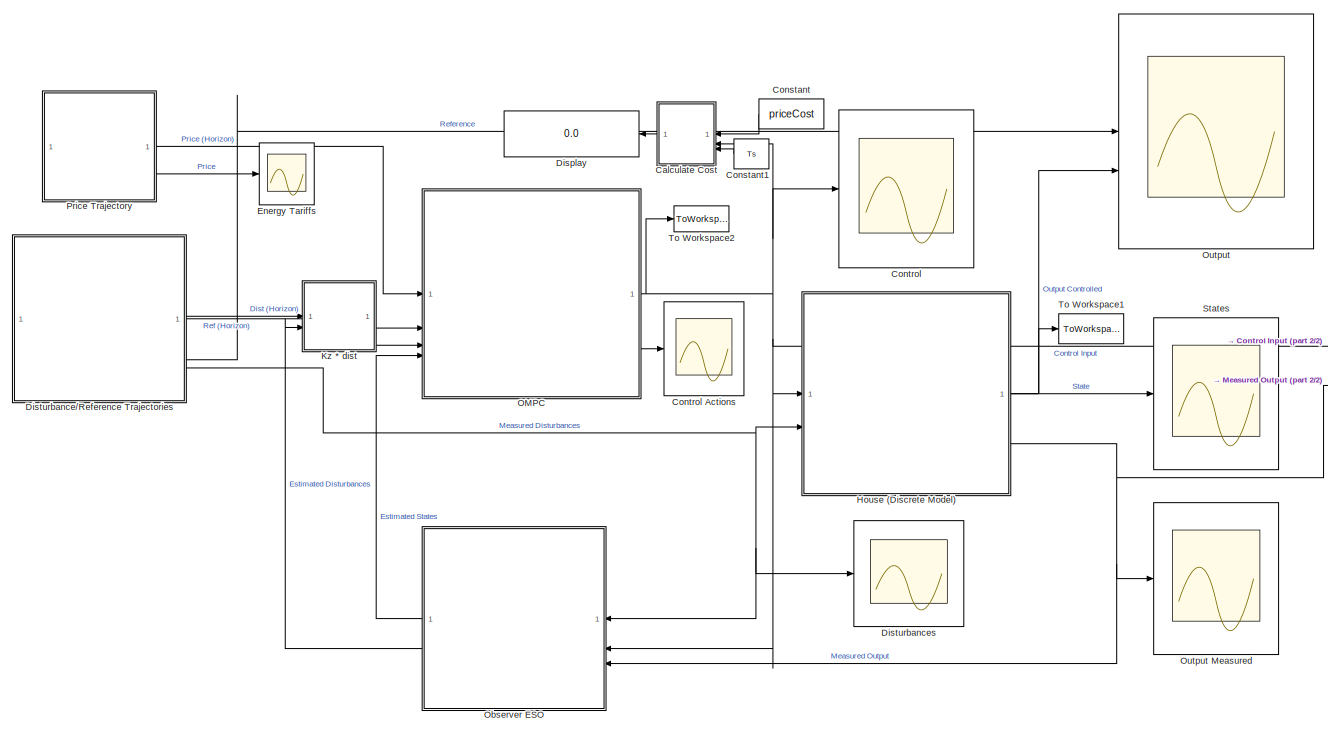
[diagram: root canvas - part 1/2, most of the canvas]
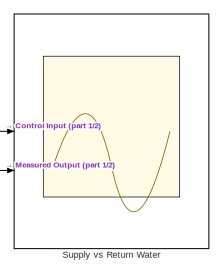
[diagram: root canvas - part 2/2, middle right region]
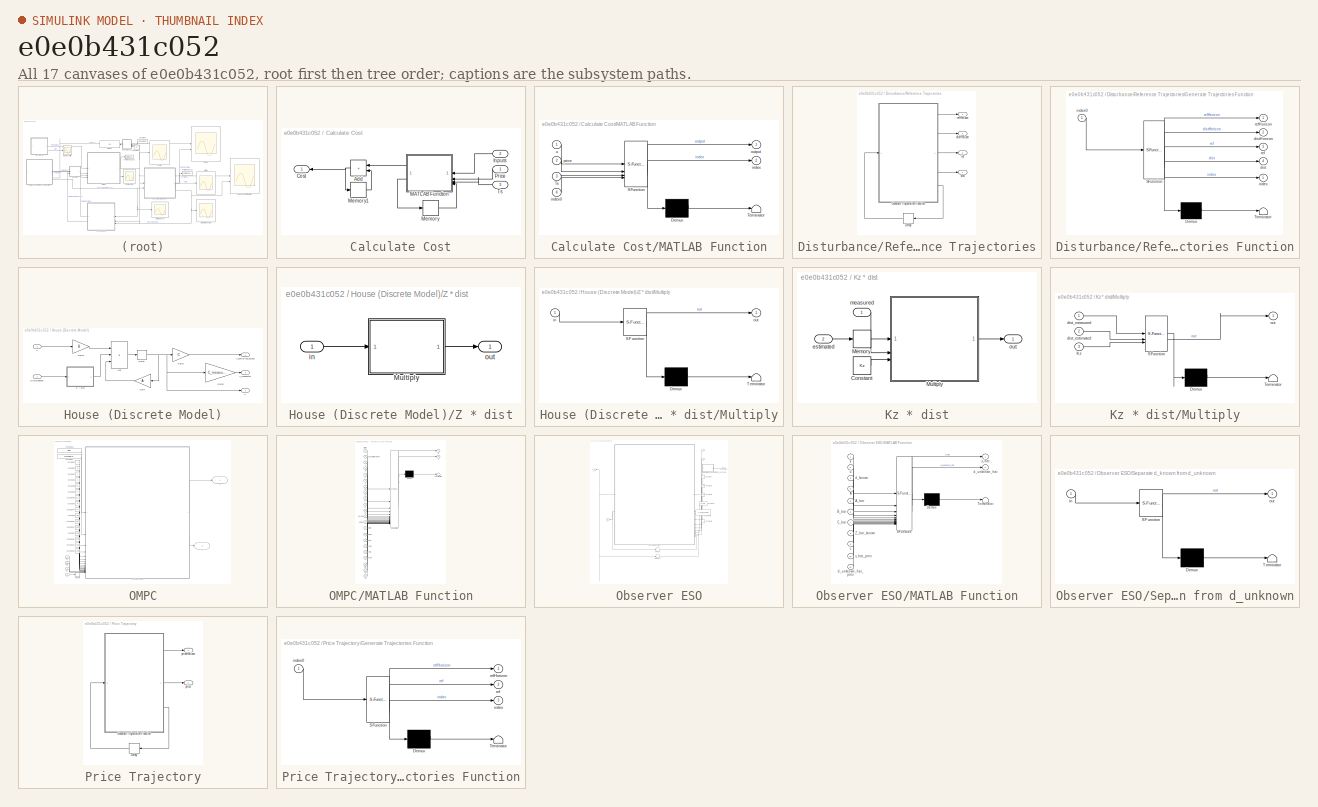
[diagram: thumbnail index - all 17 canvases of the model, root first then tree order]
MODEL slx_e0e0b431c052
KIND model
CONFIG AbsTol = auto
CONFIG EnableMultiTasking = off
CONFIG FixedStep = Ts
CONFIG MaxStep = auto
CONFIG MinStep = auto
CONFIG RelTol = 1e-3
CONFIG SampleTimeConstraint = Unconstrained
CONFIG SolverName = ode8
CONFIG StartTime = 0.0
CONFIG StopTime = time
BLOCK [SubSystem] Calculate Cost
BLOCK [Sum] Calculate Cost/Add
  IconShape = rectangular
  NameLocation = top
BLOCK [Outport] Calculate Cost/Cost
BLOCK [Inport] Calculate Cost/Inputs
  Port = 2
BLOCK [SubSystem] Calculate Cost/MATLAB Function
  ErrorFcn = Stateflow.Translate.translate
  LibrarySourceBlock = simulink/User-Defined\nFunctions/MATLAB Function
  PermitHierarchicalResolution = ExplicitOnly
  SFBlockType = MATLAB Function
  TreatAsAtomicUnit = on
BLOCK [Demux] Calculate Cost/MATLAB Function/ Demux 
  Outputs = 1
BLOCK [S-Function] Calculate Cost/MATLAB Function/ SFunction 
  EnableBusSupport = on
  FunctionName = sf_sfun
  PortCounts = [4 3]
  SFcnIsStateOwnerBlock = off
  SFunctionDeploymentMode = off
  Tag = Stateflow S-Function 3
BLOCK [Terminator] Calculate Cost/MATLAB Function/ Terminator 
BLOCK [Inport] Calculate Cost/MATLAB Function/Ts
  Port = 3
BLOCK [Outport] Calculate Cost/MATLAB Function/index
  Port = 2
BLOCK [Inport] Calculate Cost/MATLAB Function/index0
  Port = 4
BLOCK [Outport] Calculate Cost/MATLAB Function/output
BLOCK [Inport] Calculate Cost/MATLAB Function/price
  Port = 2
BLOCK [Inport] Calculate Cost/MATLAB Function/u
BLOCK [Memory] Calculate Cost/Memory
  InitialCondition = 1
BLOCK [Memory] Calculate Cost/Memory1
  InitialCondition = [0 0]
BLOCK [Inport] Calculate Cost/Price
BLOCK [Inport] Calculate Cost/Ts
  Port = 3
BLOCK [Constant] Constant
  NameLocation = top
  Value = priceCost
BLOCK [Constant] Constant1
  NameLocation = top
  Value = Ts
BLOCK [Scope] Control
  Floating = off
  NumInputPorts = 1
  ScopeSpecificationString = Simulink.scopes.TimeScopeBlockCfg('CurrentConfiguration', extmgr.ConfigurationSet(extmgr.Configuration('Core','General UI',true,'FigureColor',[1 1 1]),extmgr.Configuration('Core','Source UI',true),extmgr.Configuration('Sources','WiredSimulink',true,'DataLoggingVariableName','ScopeData2'),extmgr.Configuration('Visuals','Time Domain',true,'SerializedDisplays',{struct('MinYLimReal','5.9347','MaxYLimR...<+1852ch>
BLOCK [Scope] Control Actions
  Floating = off
  NumInputPorts = 1
  ScopeSpecificationString = Simulink.scopes.TimeScopeBlockCfg('CurrentConfiguration', extmgr.ConfigurationSet(extmgr.Configuration('Core','General UI',true,'FigureColor',[1 1 1]),extmgr.Configuration('Core','Source UI',true),extmgr.Configuration('Sources','WiredSimulink',true,'DataLoggingVariableName','ScopeData1'),extmgr.Configuration('Visuals','Time Domain',true,'SerializedDisplays',{struct('MinYLimReal','-367.49454','MaxY...<+1776ch>
BLOCK [Display] Display
  Decimation = 1
  NameLocation = top
BLOCK [SubSystem] Disturbance//Reference Trajectories
BLOCK [Delay] Disturbance//Reference Trajectories/Delay
  DelayLength = 1
  InitialCondition = 1
  InputPortMap = u0
  NameLocation = top
BLOCK [SubSystem] Disturbance//Reference Trajectories/Generate Trajectories Function
  ErrorFcn = Stateflow.Translate.translate
  LibrarySourceBlock = simulink/User-Defined\nFunctions/MATLAB Function
  PermitHierarchicalResolution = ExplicitOnly
  SFBlockType = MATLAB Function
  TreatAsAtomicUnit = on
BLOCK [Demux] Disturbance//Reference Trajectories/Generate Trajectories Function/ Demux 
  Outputs = 1
BLOCK [S-Function] Disturbance//Reference Trajectories/Generate Trajectories Function/ SFunction 
  EnableBusSupport = on
  FunctionName = sf_sfun
  Parameters = Ts,distValues,na,refValues,time
  PortCounts = [1 6]
  SFcnIsStateOwnerBlock = off
  SFunctionDeploymentMode = off
  Tag = Stateflow S-Function 10
BLOCK [Terminator] Disturbance//Reference Trajectories/Generate Trajectories Function/ Terminator 
BLOCK [Outport] Disturbance//Reference Trajectories/Generate Trajectories Function/dist
  Port = 4
BLOCK [Outport] Disturbance//Reference Trajectories/Generate Trajectories Function/distHorizon
  Port = 2
BLOCK [Outport] Disturbance//Reference Trajectories/Generate Trajectories Function/index
  Port = 5
BLOCK [Inport] Disturbance//Reference Trajectories/Generate Trajectories Function/index0
BLOCK [Outport] Disturbance//Reference Trajectories/Generate Trajectories Function/ref
  Port = 3
BLOCK [Outport] Disturbance//Reference Trajectories/Generate Trajectories Function/refHorizon
BLOCK [Outport] Disturbance//Reference Trajectories/dist
  Port = 4
BLOCK [Outport] Disturbance//Reference Trajectories/distHorizon
  Port = 2
BLOCK [Outport] Disturbance//Reference Trajectories/ref
  Port = 3
BLOCK [Outport] Disturbance//Reference Trajectories/refHorizon
BLOCK [Scope] Disturbances
  Floating = off
  NumInputPorts = 1
  ScopeSpecificationString = Simulink.scopes.TimeScopeBlockCfg('CurrentConfiguration', extmgr.ConfigurationSet(extmgr.Configuration('Core','General UI',true,'FigureColor',[1 1 1]),extmgr.Configuration('Core','Source UI',true),extmgr.Configuration('Sources','WiredSimulink',true,'DataLoggingVariableName','ScopeData6'),extmgr.Configuration('Visuals','Time Domain',true,'SerializedDisplays',{struct('MinYLimReal','-10.15502','MaxYL...<+2436ch>
BLOCK [Scope] Energy Tariffs
  Floating = off
  NumInputPorts = 1
  ScopeSpecificationString = Simulink.scopes.TimeScopeBlockCfg('CurrentConfiguration', extmgr.ConfigurationSet(extmgr.Configuration('Core','General UI',true,'FigureColor',[1 1 1]),extmgr.Configuration('Core','Source UI',true),extmgr.Configuration('Sources','WiredSimulink',true,'DataLoggingVariableName','ScopeData1'),extmgr.Configuration('Visuals','Time Domain',true,'SerializedDisplays',{struct('MinYLimReal','0.92527','MaxYLim...<+1587ch>
BLOCK [SubSystem] House (Discrete Model)
BLOCK [Sum] House (Discrete Model)/Add
  IconShape = rectangular
  Inputs = +++
BLOCK [Delay] House (Discrete Model)/Delay
  DelayLength = 1
  InitialCondition = x0
  InputPortMap = u0
BLOCK [Inport] House (Discrete Model)/Disturbances
  Port = 2
BLOCK [Gain] House (Discrete Model)/Gain
  Gain = A
  Multiplication = Matrix(K*u) (u vector)
  NameLocation = top
BLOCK [Gain] House (Discrete Model)/Gain1
  Gain = C
  Multiplication = Matrix(K*u) (u vector)
BLOCK [Gain] House (Discrete Model)/Gain2
  Gain = B
  Multiplication = Matrix(K*u) (u vector)
BLOCK [Gain] House (Discrete Model)/Gain5
  Gain = C_measured
  Multiplication = Matrix(K*u) (u vector)
BLOCK [SubSystem] House (Discrete Model)/Z * dist
BLOCK [SubSystem] House (Discrete Model)/Z * dist/Multiply
  ErrorFcn = Stateflow.Translate.translate
  LibrarySourceBlock = simulink/User-Defined\nFunctions/MATLAB Function
  PermitHierarchicalResolution = ExplicitOnly
  SFBlockType = MATLAB Function
  TreatAsAtomicUnit = on
BLOCK [Demux] House (Discrete Model)/Z * dist/Multiply/ Demux 
  Outputs = 1
BLOCK [S-Function] House (Discrete Model)/Z * dist/Multiply/ SFunction 
  EnableBusSupport = on
  FunctionName = sf_sfun
  Parameters = Z
  PortCounts = [1 2]
  SFcnIsStateOwnerBlock = off
  SFunctionDeploymentMode = off
  Tag = Stateflow S-Function 1
BLOCK [Terminator] House (Discrete Model)/Z * dist/Multiply/ Terminator 
BLOCK [Inport] House (Discrete Model)/Z * dist/Multiply/in
BLOCK [Outport] House (Discrete Model)/Z * dist/Multiply/out
BLOCK [Inport] House (Discrete Model)/Z * dist/in
BLOCK [Outport] House (Discrete Model)/Z * dist/out
BLOCK [Inport] House (Discrete Model)/u
BLOCK [Outport] House (Discrete Model)/x
  Port = 2
BLOCK [Outport] House (Discrete Model)/y_controlled_output
BLOCK [Outport] House (Discrete Model)/y_measured
  Port = 3
BLOCK [SubSystem] Kz * dist
BLOCK [Constant] Kz * dist/Constant
  Value = Kz
BLOCK [Memory] Kz * dist/Memory
  InitialCondition = zeros(size(Z,2)-6,1)
BLOCK [SubSystem] Kz * dist/Multiply
  ErrorFcn = Stateflow.Translate.translate
  LibrarySourceBlock = simulink/User-Defined\nFunctions/MATLAB Function
  PermitHierarchicalResolution = ExplicitOnly
  SFBlockType = MATLAB Function
  TreatAsAtomicUnit = on
BLOCK [Demux] Kz * dist/Multiply/ Demux 
  Outputs = 1
BLOCK [S-Function] Kz * dist/Multiply/ SFunction 
  EnableBusSupport = on
  FunctionName = sf_sfun
  PortCounts = [3 2]
  SFcnIsStateOwnerBlock = off
  SFunctionDeploymentMode = off
  Tag = Stateflow S-Function 12
BLOCK [Terminator] Kz * dist/Multiply/ Terminator 
BLOCK [Inport] Kz * dist/Multiply/Kz
  Port = 3
BLOCK [Inport] Kz * dist/Multiply/dist_estimated
  Port = 2
BLOCK [Inport] Kz * dist/Multiply/dist_measured
BLOCK [Outport] Kz * dist/Multiply/out
BLOCK [Inport] Kz * dist/estimated
  Port = 2
BLOCK [Inport] Kz * dist/measured
BLOCK [Outport] Kz * dist/out
BLOCK [SubSystem] OMPC
BLOCK [Constant] OMPC/Constant1
  Value = xmax
  VectorParams1D = off
BLOCK [Constant] OMPC/Constant10
  Value = umax
  VectorParams1D = off
BLOCK [Constant] OMPC/Constant11
  Value = umin
  VectorParams1D = off
BLOCK [Constant] OMPC/Constant12
  Value = ymax
BLOCK [Constant] OMPC/Constant13
  Value = ymin
BLOCK [Constant] OMPC/Constant14
  Value = nc
BLOCK [Constant] OMPC/Constant15
  Value = xmin
BLOCK [Constant] OMPC/Constant16
  Value = Scr
  VectorParams1D = off
BLOCK [Constant] OMPC/Constant17
  Value = zoneWaterIndex
BLOCK [Constant] OMPC/Constant18
  Value = Qflow
BLOCK [Constant] OMPC/Constant2
  Value = A
BLOCK [Constant] OMPC/Constant3
  Value = B
  VectorParams1D = off
BLOCK [Constant] OMPC/Constant4
  Value = C
  VectorParams1D = off
BLOCK [Constant] OMPC/Constant5
  Value = npred
BLOCK [Constant] OMPC/Constant6
  Value = K
  VectorParams1D = off
BLOCK [Constant] OMPC/Constant7
  Value = w
BLOCK [Constant] OMPC/Constant8
  Value = Sxc
  VectorParams1D = off
BLOCK [Constant] OMPC/Constant9
  Value = Sc
  VectorParams1D = off
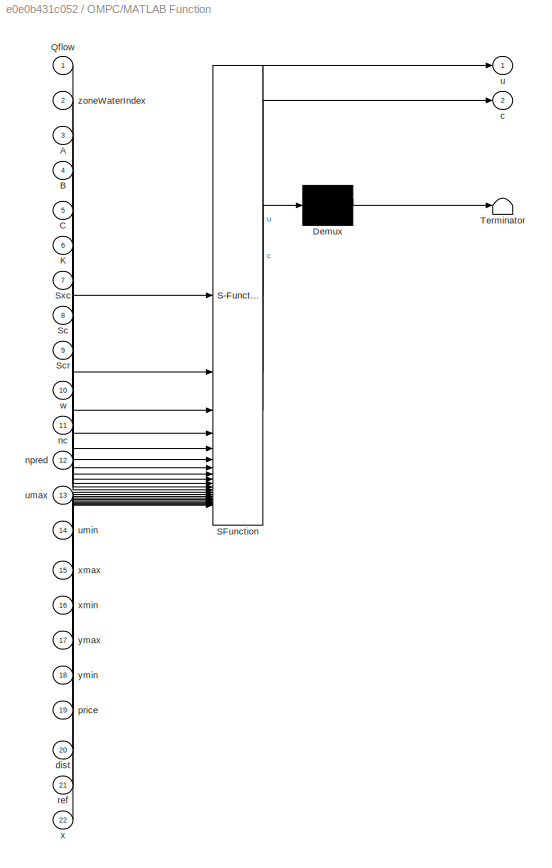
BLOCK [SubSystem] OMPC/MATLAB Function
  ErrorFcn = Stateflow.Translate.translate
  LibrarySourceBlock = simulink/User-Defined\nFunctions/MATLAB Function
  PermitHierarchicalResolution = ExplicitOnly
  SFBlockType = MATLAB Function
  TreatAsAtomicUnit = on
BLOCK [Demux] OMPC/MATLAB Function/ Demux 
  Outputs = 1
BLOCK [S-Function] OMPC/MATLAB Function/ SFunction 
  EnableBusSupport = on
  FunctionName = sf_sfun
  PortCounts = [22 3]
  SFcnIsStateOwnerBlock = off
  SFunctionDeploymentMode = off
  Tag = Stateflow S-Function 14
BLOCK [Terminator] OMPC/MATLAB Function/ Terminator 
BLOCK [Inport] OMPC/MATLAB Function/A
  Port = 3
BLOCK [Inport] OMPC/MATLAB Function/B
  Port = 4
BLOCK [Inport] OMPC/MATLAB Function/C
  Port = 5
BLOCK [Inport] OMPC/MATLAB Function/K
  Port = 6
BLOCK [Inport] OMPC/MATLAB Function/Qflow
BLOCK [Inport] OMPC/MATLAB Function/Sc
  Port = 8
BLOCK [Inport] OMPC/MATLAB Function/Scr
  Port = 9
BLOCK [Inport] OMPC/MATLAB Function/Sxc
  Port = 7
BLOCK [Outport] OMPC/MATLAB Function/c
  Port = 2
BLOCK [Inport] OMPC/MATLAB Function/dist
  Port = 20
BLOCK [Inport] OMPC/MATLAB Function/nc
  Port = 11
BLOCK [Inport] OMPC/MATLAB Function/npred
  Port = 12
BLOCK [Inport] OMPC/MATLAB Function/price
  Port = 19
BLOCK [Inport] OMPC/MATLAB Function/ref
  Port = 21
BLOCK [Outport] OMPC/MATLAB Function/u
BLOCK [Inport] OMPC/MATLAB Function/umax
  Port = 13
BLOCK [Inport] OMPC/MATLAB Function/umin
  Port = 14
BLOCK [Inport] OMPC/MATLAB Function/w
  Port = 10
BLOCK [Inport] OMPC/MATLAB Function/x
  Port = 22
BLOCK [Inport] OMPC/MATLAB Function/xmax
  Port = 15
BLOCK [Inport] OMPC/MATLAB Function/xmin
  Port = 16
BLOCK [Inport] OMPC/MATLAB Function/ymax
  Port = 17
BLOCK [Inport] OMPC/MATLAB Function/ymin
  Port = 18
BLOCK [Inport] OMPC/MATLAB Function/zoneWaterIndex
  Port = 2
BLOCK [Memory] OMPC/Memory
  InitialCondition = x0
BLOCK [Outport] OMPC/c
  Port = 2
BLOCK [Inport] OMPC/dist
  Port = 3
BLOCK [Inport] OMPC/price
BLOCK [Inport] OMPC/ref
  Port = 2
BLOCK [Outport] OMPC/u
BLOCK [Inport] OMPC/x
  Port = 4
BLOCK [SubSystem] Observer ESO
BLOCK [Constant] Observer ESO/Constant
  NameLocation = top
  Value = A
BLOCK [Constant] Observer ESO/Constant1
  NameLocation = top
  Value = A_bar
BLOCK [Constant] Observer ESO/Constant2
  NameLocation = top
  Value = B_bar
BLOCK [Constant] Observer ESO/Constant3
  NameLocation = top
  Value = C_bar
BLOCK [Constant] Observer ESO/Constant4
  NameLocation = top
  Value = Z_bar_known
BLOCK [Constant] Observer ESO/Constant5
  NameLocation = top
  Value = L
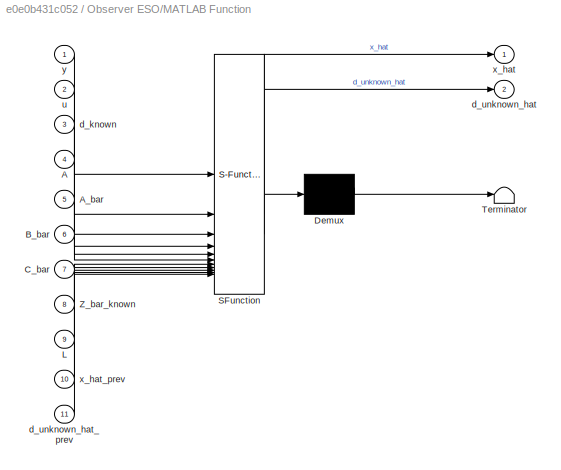
BLOCK [SubSystem] Observer ESO/MATLAB Function
  ErrorFcn = Stateflow.Translate.translate
  LibrarySourceBlock = simulink/User-Defined\nFunctions/MATLAB Function
  NameLocation = top
  PermitHierarchicalResolution = ExplicitOnly
  SFBlockType = MATLAB Function
  TreatAsAtomicUnit = on
BLOCK [Demux] Observer ESO/MATLAB Function/ Demux 
  Outputs = 1
BLOCK [S-Function] Observer ESO/MATLAB Function/ SFunction 
  EnableBusSupport = on
  FunctionName = sf_sfun
  PortCounts = [11 3]
  SFcnIsStateOwnerBlock = off
  SFunctionDeploymentMode = off
  Tag = Stateflow S-Function 15
BLOCK [Terminator] Observer ESO/MATLAB Function/ Terminator 
BLOCK [Inport] Observer ESO/MATLAB Function/A
  Port = 4
BLOCK [Inport] Observer ESO/MATLAB Function/A_bar
  Port = 5
BLOCK [Inport] Observer ESO/MATLAB Function/B_bar
  Port = 6
BLOCK [Inport] Observer ESO/MATLAB Function/C_bar
  Port = 7
BLOCK [Inport] Observer ESO/MATLAB Function/L
  Port = 9
BLOCK [Inport] Observer ESO/MATLAB Function/Z_bar_known
  Port = 8
BLOCK [Inport] Observer ESO/MATLAB Function/d_known
  Port = 3
BLOCK [Outport] Observer ESO/MATLAB Function/d_unknown_hat
  Port = 2
BLOCK [Inport] Observer ESO/MATLAB Function/d_unknown_hat_prev
  Port = 11
BLOCK [Inport] Observer ESO/MATLAB Function/u
  Port = 2
BLOCK [Outport] Observer ESO/MATLAB Function/x_hat
BLOCK [Inport] Observer ESO/MATLAB Function/x_hat_prev
  Port = 10
BLOCK [Inport] Observer ESO/MATLAB Function/y
BLOCK [Memory] Observer ESO/Memory
  InitialCondition = zeros(size(Z,2) - size(Z_bar_known,2),1)
BLOCK [Memory] Observer ESO/Memory1
  InitialCondition = x0
BLOCK [SubSystem] Observer ESO/Separate d_known from d_unknown
  ErrorFcn = Stateflow.Translate.translate
  LibrarySourceBlock = simulink/User-Defined\nFunctions/MATLAB Function
  NameLocation = top
  PermitHierarchicalResolution = ExplicitOnly
  SFBlockType = MATLAB Function
  TreatAsAtomicUnit = on
BLOCK [Demux] Observer ESO/Separate d_known from d_unknown/ Demux 
  Outputs = 1
BLOCK [S-Function] Observer ESO/Separate d_known from d_unknown/ SFunction 
  EnableBusSupport = on
  FunctionName = sf_sfun
  PortCounts = [1 2]
  SFcnIsStateOwnerBlock = off
  SFunctionDeploymentMode = off
  Tag = Stateflow S-Function 17
BLOCK [Terminator] Observer ESO/Separate d_known from d_unknown/ Terminator 
BLOCK [Inport] Observer ESO/Separate d_known from d_unknown/in
BLOCK [Outport] Observer ESO/Separate d_known from d_unknown/out
BLOCK [Outport] Observer ESO/d
  NameLocation = top
  Port = 2
BLOCK [Inport] Observer ESO/d_known
  NameLocation = top
BLOCK [Inport] Observer ESO/u
  NameLocation = top
  Port = 2
BLOCK [Outport] Observer ESO/x
  NameLocation = top
BLOCK [Inport] Observer ESO/y
  NameLocation = top
  Port = 3
BLOCK [Scope] Output
  Floating = off
  NumInputPorts = 2
  ScopeSpecificationString = Simulink.scopes.TimeScopeBlockCfg('CurrentConfiguration', extmgr.ConfigurationSet(extmgr.Configuration('Core','General UI',true,'FigureColor',[1 1 1]),extmgr.Configuration('Core','Source UI',true),extmgr.Configuration('Sources','WiredSimulink',true,'DataLoggingVariableName','ScopeData5'),extmgr.Configuration('Visuals','Time Domain',true,'PlotType','Line','SerializedDisplays',{struct('MinYLimReal',...<+2176ch>
BLOCK [Scope] Output Measured
  Floating = off
  NumInputPorts = 1
  ScopeSpecificationString = Simulink.scopes.TimeScopeBlockCfg('CurrentConfiguration', extmgr.ConfigurationSet(extmgr.Configuration('Core','General UI',true,'FigureColor',[1 1 1]),extmgr.Configuration('Core','Source UI',true),extmgr.Configuration('Sources','WiredSimulink',true,'DataLoggingVariableName','ScopeData4'),extmgr.Configuration('Visuals','Time Domain',true,'SerializedDisplays',{struct('MinYLimReal','16.1351','MaxYLim...<+4156ch>
BLOCK [SubSystem] Price Trajectory
BLOCK [Delay] Price Trajectory/Delay
  DelayLength = 1
  InitialCondition = 1
  InputPortMap = u0
  NameLocation = top
BLOCK [SubSystem] Price Trajectory/Generate Trajectories Function
  ErrorFcn = Stateflow.Translate.translate
  LibrarySourceBlock = simulink/User-Defined\nFunctions/MATLAB Function
  PermitHierarchicalResolution = ExplicitOnly
  SFBlockType = MATLAB Function
  TreatAsAtomicUnit = on
BLOCK [Demux] Price Trajectory/Generate Trajectories Function/ Demux 
  Outputs = 1
BLOCK [S-Function] Price Trajectory/Generate Trajectories Function/ SFunction 
  EnableBusSupport = on
  FunctionName = sf_sfun
  Parameters = N,Ts,refValues,time
  PortCounts = [1 4]
  SFcnIsStateOwnerBlock = off
  SFunctionDeploymentMode = off
  Tag = Stateflow S-Function 2
BLOCK [Terminator] Price Trajectory/Generate Trajectories Function/ Terminator 
BLOCK [Outport] Price Trajectory/Generate Trajectories Function/index
  Port = 3
BLOCK [Inport] Price Trajectory/Generate Trajectories Function/index0
BLOCK [Outport] Price Trajectory/Generate Trajectories Function/ref
  Port = 2
BLOCK [Outport] Price Trajectory/Generate Trajectories Function/refHorizon
BLOCK [Outport] Price Trajectory/price
  Port = 2
BLOCK [Outport] Price Trajectory/priceHorizon
BLOCK [Scope] States
  Floating = off
  NumInputPorts = 1
  ScopeSpecificationString = Simulink.scopes.TimeScopeBlockCfg('CurrentConfiguration', extmgr.ConfigurationSet(extmgr.Configuration('Core','General UI',true,'FigureColor',[1 1 1]),extmgr.Configuration('Core','Source UI',true),extmgr.Configuration('Sources','WiredSimulink',true,'DataLoggingVariableName','ScopeData7'),extmgr.Configuration('Visuals','Time Domain',true,'SerializedDisplays',{struct('MinYLimReal','-11.68999','MaxYL...<+4428ch>
BLOCK [Scope] Supply vs Return Water
  Floating = off
  NumInputPorts = 2
  ScopeSpecificationString = Simulink.scopes.TimeScopeBlockCfg('CurrentConfiguration', extmgr.ConfigurationSet(extmgr.Configuration('Core','General UI',true,'FigureColor',[1 1 1]),extmgr.Configuration('Core','Source UI',true),extmgr.Configuration('Sources','WiredSimulink',true,'DataLoggingVariableName','ScopeData1'),extmgr.Configuration('Visuals','Time Domain',true,'PlotType','Line','SerializedDisplays',{struct('MinYLimReal',...<+2528ch>
BLOCK [ToWorkspace] To Workspace1
  FixptAsFi = on
  MaxDataPoints = inf
  SampleTime = -1
  Save2DSignal = 2-D array (concatenate along first dimension)
  VariableName = output
BLOCK [ToWorkspace] To Workspace2
  FixptAsFi = on
  MaxDataPoints = inf
  SampleTime = -1
  Save2DSignal = 2-D array (concatenate along first dimension)
  VariableName = ctrl
NET Calculate Cost/Add:1 -> Calculate Cost/Cost:1, Calculate Cost/Memory1:1
LINE Calculate Cost/Inputs:1 -> Calculate Cost/MATLAB Function:1
LINE Calculate Cost/MATLAB Function:1 -> Calculate Cost/Add:1
LINE Calculate Cost/MATLAB Function:2 -> Calculate Cost/Memory:1
LINE Calculate Cost/Memory1:1 -> Calculate Cost/Add:2
LINE Calculate Cost/Memory:1 -> Calculate Cost/MATLAB Function:4
LINE Calculate Cost/Price:1 -> Calculate Cost/MATLAB Function:2
LINE Calculate Cost/Ts:1 -> Calculate Cost/MATLAB Function:3
LINE Calculate Cost:1 -> Display:1
LINE Constant1:1 -> Calculate Cost:3
LINE Constant:1 -> Calculate Cost:1
LINE Disturbance//Reference Trajectories/Delay:1 -> Disturbance//Reference Trajectories/Generate Trajectories Function:1
LINE Disturbance//Reference Trajectories/Generate Trajectories Function:1 -> Disturbance//Reference Trajectories/refHorizon:1
LINE Disturbance//Reference Trajectories/Generate Trajectories Function:2 -> Disturbance//Reference Trajectories/distHorizon:1
LINE Disturbance//Reference Trajectories/Generate Trajectories Function:3 -> Disturbance//Reference Trajectories/ref:1
LINE Disturbance//Reference Trajectories/Generate Trajectories Function:4 -> Disturbance//Reference Trajectories/dist:1
LINE Disturbance//Reference Trajectories/Generate Trajectories Function:5 -> Disturbance//Reference Trajectories/Delay:1
LINE Disturbance//Reference Trajectories:1 -> OMPC:2
LINE Disturbance//Reference Trajectories:2 -> Kz * dist:1
LINE Disturbance//Reference Trajectories:3 -> Output:1
NET Disturbance//Reference Trajectories:4 -> Disturbances:1, House (Discrete Model):2, Observer ESO:1
LINE House (Discrete Model)/Add:1 -> House (Discrete Model)/Delay:1
NET House (Discrete Model)/Delay:1 -> House (Discrete Model)/Gain1:1, House (Discrete Model)/Gain5:1, House (Discrete Model)/Gain:1, House (Discrete Model)/x:1
LINE House (Discrete Model)/Disturbances:1 -> House (Discrete Model)/Z * dist:1
LINE House (Discrete Model)/Gain1:1 -> House (Discrete Model)/y_controlled_output:1
LINE House (Discrete Model)/Gain2:1 -> House (Discrete Model)/Add:1
LINE House (Discrete Model)/Gain5:1 -> House (Discrete Model)/y_measured:1
LINE House (Discrete Model)/Gain:1 -> House (Discrete Model)/Add:3
LINE House (Discrete Model)/Z * dist/Multiply:1 -> House (Discrete Model)/Z * dist/out:1
LINE House (Discrete Model)/Z * dist/in:1 -> House (Discrete Model)/Z * dist/Multiply:1
LINE House (Discrete Model)/Z * dist:1 -> House (Discrete Model)/Add:2
LINE House (Discrete Model)/u:1 -> House (Discrete Model)/Gain2:1
NET House (Discrete Model):1 -> Output:2, To Workspace1:1
LINE House (Discrete Model):2 -> States:1
NET House (Discrete Model):3 -> Observer ESO:3, Output Measured:1, Supply vs Return Water:2
LINE Kz * dist/Constant:1 -> Kz * dist/Multiply:3
LINE Kz * dist/Memory:1 -> Kz * dist/Multiply:2
LINE Kz * dist/Multiply:1 -> Kz * dist/out:1
LINE Kz * dist/estimated:1 -> Kz * dist/Memory:1
LINE Kz * dist/measured:1 -> Kz * dist/Multiply:1
LINE Kz * dist:1 -> OMPC:3
LINE OMPC/Constant10:1 -> OMPC/MATLAB Function:13
LINE OMPC/Constant11:1 -> OMPC/MATLAB Function:14
LINE OMPC/Constant12:1 -> OMPC/MATLAB Function:17
LINE OMPC/Constant13:1 -> OMPC/MATLAB Function:18
LINE OMPC/Constant14:1 -> OMPC/MATLAB Function:11
LINE OMPC/Constant15:1 -> OMPC/MATLAB Function:16
LINE OMPC/Constant16:1 -> OMPC/MATLAB Function:9
LINE OMPC/Constant17:1 -> OMPC/MATLAB Function:2
LINE OMPC/Constant18:1 -> OMPC/MATLAB Function:1
LINE OMPC/Constant1:1 -> OMPC/MATLAB Function:15
LINE OMPC/Constant2:1 -> OMPC/MATLAB Function:3
LINE OMPC/Constant3:1 -> OMPC/MATLAB Function:4
LINE OMPC/Constant4:1 -> OMPC/MATLAB Function:5
LINE OMPC/Constant5:1 -> OMPC/MATLAB Function:12
LINE OMPC/Constant6:1 -> OMPC/MATLAB Function:6
LINE OMPC/Constant7:1 -> OMPC/MATLAB Function:10
LINE OMPC/Constant8:1 -> OMPC/MATLAB Function:7
LINE OMPC/Constant9:1 -> OMPC/MATLAB Function:8
LINE OMPC/MATLAB Function:1 -> OMPC/u:1
LINE OMPC/MATLAB Function:2 -> OMPC/c:1
LINE OMPC/Memory:1 -> OMPC/MATLAB Function:22
LINE OMPC/dist:1 -> OMPC/MATLAB Function:20
LINE OMPC/price:1 -> OMPC/MATLAB Function:19
LINE OMPC/ref:1 -> OMPC/MATLAB Function:21
LINE OMPC/x:1 -> OMPC/Memory:1
NET OMPC:1 -> Calculate Cost:2, Control:1, House (Discrete Model):1, Observer ESO:2, Supply vs Return Water:1, To Workspace2:1
LINE OMPC:2 -> Control Actions:1
LINE Observer ESO/Constant1:1 -> Observer ESO/MATLAB Function:5
LINE Observer ESO/Constant2:1 -> Observer ESO/MATLAB Function:6
LINE Observer ESO/Constant3:1 -> Observer ESO/MATLAB Function:7
LINE Observer ESO/Constant4:1 -> Observer ESO/MATLAB Function:8
LINE Observer ESO/Constant5:1 -> Observer ESO/MATLAB Function:9
LINE Observer ESO/Constant:1 -> Observer ESO/MATLAB Function:4
NET Observer ESO/MATLAB Function:1 -> Observer ESO/Memory1:1, Observer ESO/x:1
NET Observer ESO/MATLAB Function:2 -> Observer ESO/Memory:1, Observer ESO/d:1
LINE Observer ESO/Memory1:1 -> Observer ESO/MATLAB Function:10
LINE Observer ESO/Memory:1 -> Observer ESO/MATLAB Function:11
LINE Observer ESO/Separate d_known from d_unknown:1 -> Observer ESO/MATLAB Function:3
LINE Observer ESO/d_known:1 -> Observer ESO/Separate d_known from d_unknown:1
LINE Observer ESO/u:1 -> Observer ESO/MATLAB Function:2
LINE Observer ESO/y:1 -> Observer ESO/MATLAB Function:1
LINE Observer ESO:1 -> OMPC:4
LINE Observer ESO:2 -> Kz * dist:2
LINE Price Trajectory/Delay:1 -> Price Trajectory/Generate Trajectories Function:1
LINE Price Trajectory/Generate Trajectories Function:1 -> Price Trajectory/priceHorizon:1
LINE Price Trajectory/Generate Trajectories Function:2 -> Price Trajectory/price:1
LINE Price Trajectory/Generate Trajectories Function:3 -> Price Trajectory/Delay:1
LINE Price Trajectory:1 -> OMPC:1
LINE Price Trajectory:2 -> Energy Tariffs:1
note: NET lines group one-source signal fan-out (src -> all destinations, sorted); 1:1 wires keep LINE
CHART Observer ESO/MATLAB Function states=1 transitions=1
  STATE_LABEL 'eML_blk_kernel()'
  STATE_LABEL 'SCRIPT:\nfunction [x_hat, d_unknown_hat] = observerESO(y, u, d_known, A, A_bar, B_bar, C_bar, Z_bar_known, L, x_hat_prev, d_unknown_hat_prev)\n\nnx = size(A, 1);\n\n% Rozszerzone stany\nx_bar_hat = [x_hat_prev; d_unknown_hat_prev];\ny_hat = C_bar * x_bar_hat;\n\n% Aktualizacja estymacji\nx_bar_hat = A_bar * x_bar_hat + B_bar * u + Z_bar_known * d_known + L * (y - y_hat);\n\nx_hat = x_bar_hat(1:nx); % Estymowa...<+82ch>'
CHART Observer ESO/Separate d_known from d_unknown states=1 transitions=1
  STATE_LABEL 'eML_blk_kernel()'
  STATE_LABEL 'SCRIPT:\nfunction out = fcn(in)\n\nout = in(1:6,:);\n'
CHART House (Discrete Model)/Z * dist/Multiply states=1 transitions=1
  STATE_LABEL 'eML_blk_kernel()'
  STATE_LABEL 'SCRIPT:\nfunction out = fcn(in, Z)\nout = Z*in;\n'
CHART Price Trajectory/Generate Trajectories Function states=1 transitions=1
  STATE_LABEL 'eML_blk_kernel()'
  STATE_LABEL 'SCRIPT:\nfunction [refHorizon,ref,index] = fcn(time, Ts, N, refValues, index0)\n\nflag = 1;\n[~, refHorizon, ref] = generateTrajectory(refValues,flag,time,Ts,N,index0);\n\nindex = index0 + 1;\n'
CHART Calculate Cost/MATLAB Function states=1 transitions=1
  STATE_LABEL 'eML_blk_kernel()'
  STATE_LABEL 'SCRIPT:\nfunction [output, index] = fcn(u, price, Ts, index0)\n\n% u [W]\n% price [kWh]\n\n%przekonwertuj na kWh\nt_base = Ts/3600;\n\ncost = u(end,end)/1000*t_base * price(index0);\npower = u(end,end)/1000*t_base;\noutput = [cost power];\nindex = index0 + 1;'
CHART Disturbance//Reference Trajectories/Generate Trajectories Function states=1 transitions=1
  STATE_LABEL 'eML_blk_kernel()'
  STATE_LABEL 'SCRIPT:\nfunction [refHorizon,distHorizon,ref,dist,index] = fcn(time, Ts, na, refValues, distValues, index0)\n\nmode = 1;\n[~, refHorizon, ref] = generateTrajectory(refValues,mode,time,Ts,na,index0);\n\nN = size(refValues,1);\n\nfor i = 1:N-1\n    for j = 1:na-1\n        if refHorizon(i + (j-1)*N) > refHorizon(i+j*N)\n            refHorizon(i+j*N) = refHorizon(i + (j-1)*N);\n        end\n    end\nend\n\nmode = 2;...<+102ch>'
CHART Kz * dist/Multiply states=1 transitions=1
  STATE_LABEL 'eML_blk_kernel()'
  STATE_LABEL 'SCRIPT:\nfunction out = fcn(dist_measured,dist_estimated, Kz)\n\n%--------------------------------------------------------------------------\n%Stwórz wektor sygnałów zakłócających z danych pomiarowych oraz estymacji\nlen_measured = length(dist_measured);\nlen_estimated = length(dist_estimated);\nlen_repeating = 6 + len_estimated; %6 wynika z liczby zakłóceń mierzalnych\nN = len_measured / len_repeating;\nd...<+335ch>'
CHART OMPC/MATLAB Function states=1 transitions=1
  STATE_LABEL 'eML_blk_kernel()'
  STATE_LABEL 'SCRIPT:\nfunction [u,c] = fcn(Qflow,zoneWaterIndex,A,B,C,K,Sxc,Sc,Scr,w,nc,npred,umax,umin,xmax,xmin,ymax,ymin,price,dist,ref,x)\n\nfor i = 1:size(umin,1)-1\n    umin(i) = x(zoneWaterIndex(i));\nend\n\n[u,ctrl] = ompc_law(A,B,C,K,Sxc,Sc,Scr,Qflow,zoneWaterIndex,umax,umin,xmax,xmin,ymax,ymin,w,nc,npred,price,ref,dist,x);\nc = ctrl(1:size(B,2),:);'
CHART  states=0 transitions=0
CHART  states=0 transitions=0
CHART  states=0 transitions=0
CHART  states=0 transitions=0
CHART  states=0 transitions=0
CHART  states=0 transitions=0
CHART  states=0 transitions=0
CHART  states=0 transitions=0
